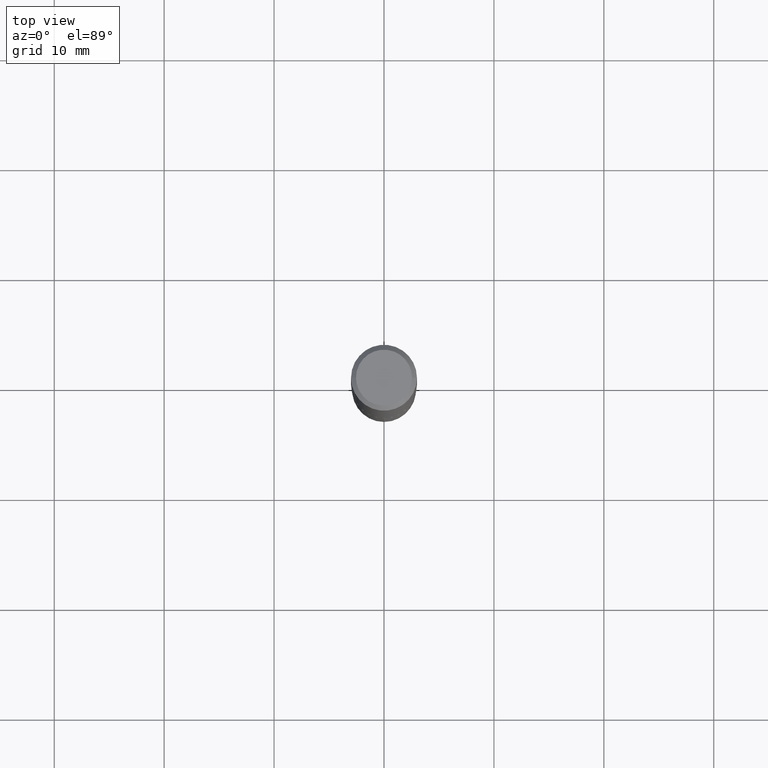
[diagram: clean part render]
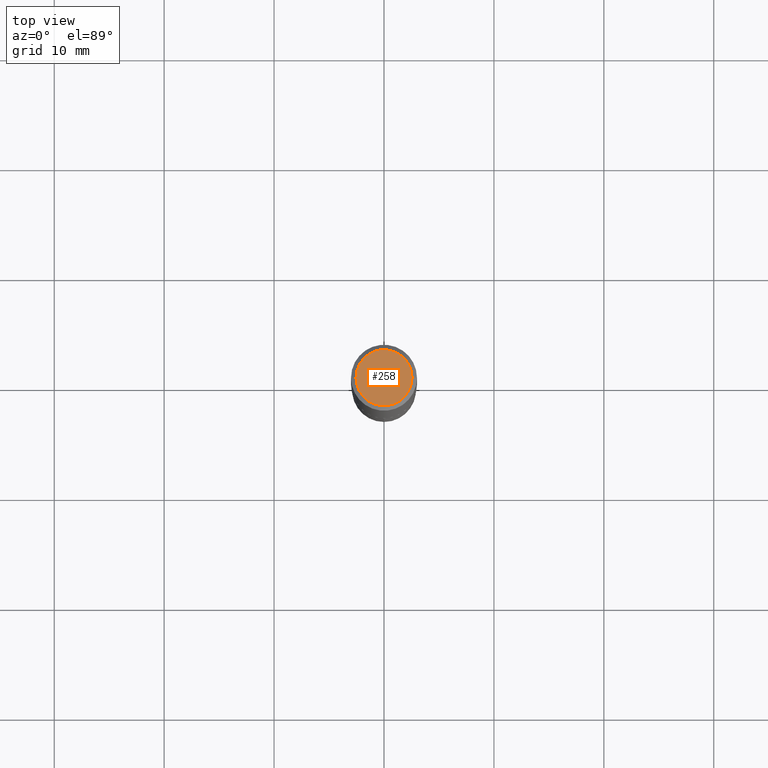
[diagram: same view with one face highlighted and labeled with its STEP entity id]
A machine part, top view. The second image highlights one B-rep face of the part: STEP entity #258.
In plain terms, the highlighted planar face has unit normal (0, -0, -1).
Its self-contained STEP definition (entity closure, byte-faithful):
#6 = CARTESIAN_POINT ( 'NONE',  ( 3.507850874923593654E-46, -5.008281372579124849E-32, -1.434428795841294606E-17 ) ) ;
#14 = ORIENTED_EDGE ( 'NONE', *, *, #77, .T. ) ;
#29 = DIRECTION ( 'NONE',  ( 1.000000000000000000, -6.982962677686266711E-15, 4.875668750515085695E-29 ) ) ;
#34 = DIRECTION ( 'NONE',  ( -2.445468806185136597E-29, 3.491481338843145583E-15, 1.000000000000000000 ) ) ;
#36 = CIRCLE ( 'NONE', #302, 0.1003850000000000159 ) ;
#77 = EDGE_CURVE ( 'NONE', #236, #201, #36, .T. ) ;
#82 = ORIENTED_EDGE ( 'NONE', *, *, #472, .T. ) ;
#150 = AXIS2_PLACEMENT_3D ( 'NONE', #264, #34, #492 ) ;
#160 = DIRECTION ( 'NONE',  ( -1.000000000000000000, 6.982962677686265922E-15, -4.876176775795935793E-29 ) ) ;
#201 = VERTEX_POINT ( 'NONE', #377 ) ;
#222 = CARTESIAN_POINT ( 'NONE',  ( 7.015701749847187307E-46, -1.001656274515824970E-31, -2.868857591682589212E-17 ) ) ;
#236 = VERTEX_POINT ( 'NONE', #242 ) ;
#242 = CARTESIAN_POINT ( 'NONE',  ( 0.1003850000000000159, -7.803837484803599345E-16, -2.868857591682071522E-17 ) ) ;
#258 = ADVANCED_FACE ( 'NONE', ( #272 ), #419, .F. ) ;
#264 = CARTESIAN_POINT ( 'NONE',  ( 7.015701749847187307E-46, -1.001656274515824970E-31, -2.868857591682589212E-17 ) ) ;
#268 = EDGE_LOOP ( 'NONE', ( #82, #14 ) ) ;
#272 = FACE_OUTER_BOUND ( 'NONE', #268, .T. ) ;
#299 = CIRCLE ( 'NONE', #150, 0.1003850000000000159 ) ;
#302 = AXIS2_PLACEMENT_3D ( 'NONE', #222, #443, #29 ) ;
#377 = CARTESIAN_POINT ( 'NONE',  ( -0.1003850000000000159, 7.319105043583386689E-16, -2.868857591683090262E-17 ) ) ;
#386 = DIRECTION ( 'NONE',  ( 2.438088387897960049E-29, -3.491481338843145188E-15, -1.000000000000000000 ) ) ;
#419 = PLANE ( 'NONE',  #489 ) ;
#443 = DIRECTION ( 'NONE',  ( -2.445468806185136597E-29, 3.491481338843145583E-15, 1.000000000000000000 ) ) ;
#472 = EDGE_CURVE ( 'NONE', #201, #236, #299, .T. ) ;
#489 = AXIS2_PLACEMENT_3D ( 'NONE', #6, #386, #160 ) ;
#492 = DIRECTION ( 'NONE',  ( 1.000000000000000000, -6.982962677686266711E-15, 4.875668750515085695E-29 ) ) ;